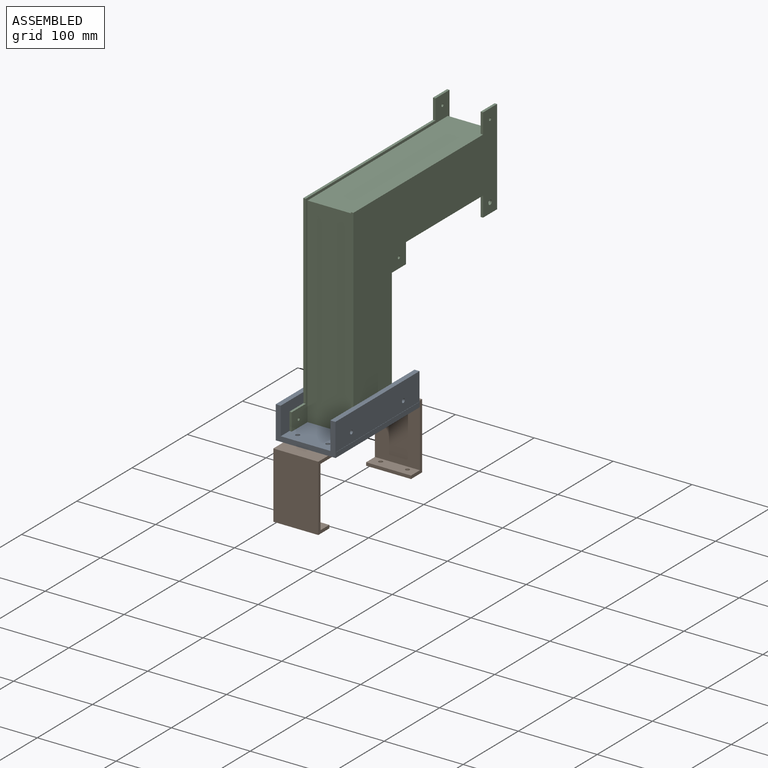
[diagram: assembled view]
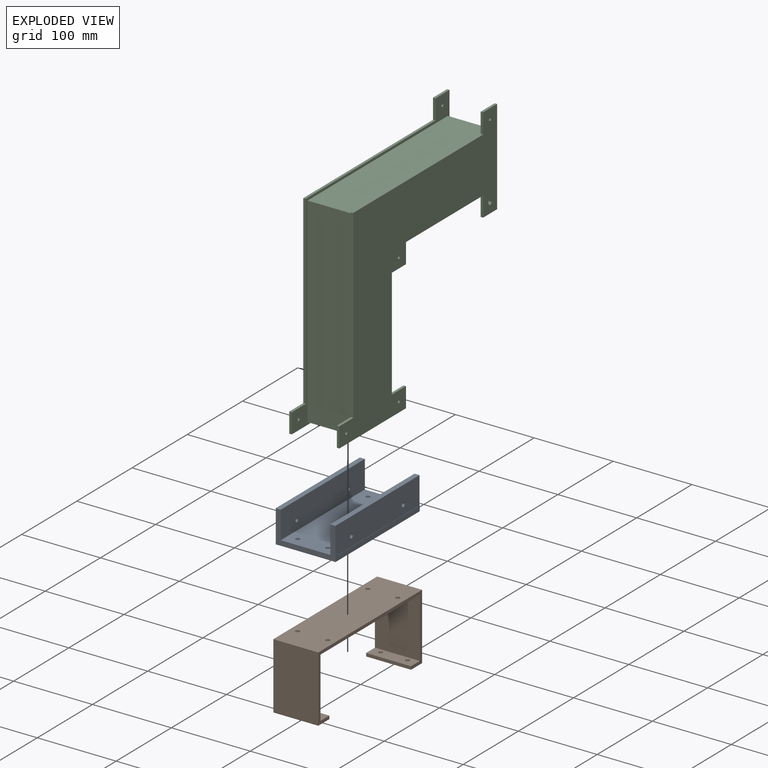
[diagram: exploded view]
GUIDED TOUR — MATED ASSEMBLY (Onshape document 570584f8e4b0b7d723cea0f6, AutoMate assembly 570584f8e4b0b7d723cea0f6_5fda52c948b7e2f611826c13_b39ca92f7335b4b7539d72b5_default)

This assembly has 3 components, labeled P0..P2 below (a component is one placed occurrence of a part; the same part can appear more than once), held together by 2 mates. A mate is a constraint between two components; its type names the relative motion it leaves free:
  FASTENED — locks the two components together rigidly (no relative motion).
Axis/direction vectors are unit vectors and 'through' points are millimeter coordinates, both in the assembly's world frame.

MATES
  1. FASTENED "Fastened 2": P2 <-> P0, direction (0.000, 0.000, -1.000) through (2.77, 72.53, -97.50) mm
  2. FASTENED "Fastened 1": P1 <-> P0, direction (0.000, 0.000, 1.000) through (2.90, 72.53, -103.85) mm

ASSEMBLY ORDER
  1. P2 — the base component [order verified]
  2. P0 [order verified]
  3. P1 [order verified]
Order-tag legend:
  [order verified] — this step's position reverses a verified removal order: the component was checked to insert without passing through the ones already placed.

Of the 3 components, 1 carries the full construction recipe — the FeatureScript program that regenerates the part's solid from scratch; the rest are supplied as boundary geometry only.
Each toured component is shown spotlighted twice — in the assembled view, then in the exploded view, where a leader line traces a displaced component back to its assembled socket (saturated green if recipe-attached, orange if geometry-only; every other component desaturated gray) — followed by its recipe or geometry summary and the mates that hold it.
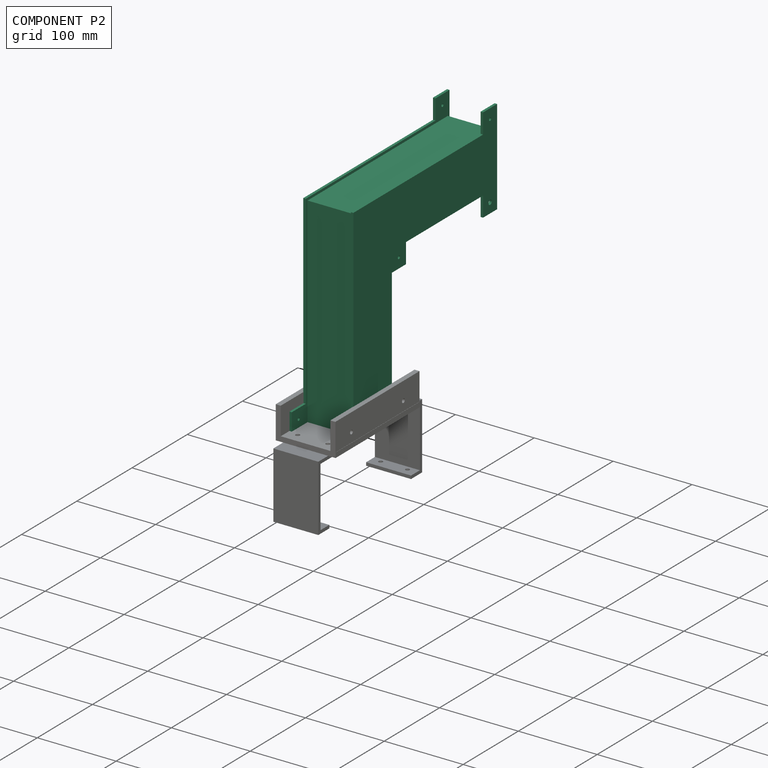
[diagram: component P2 — assembled]
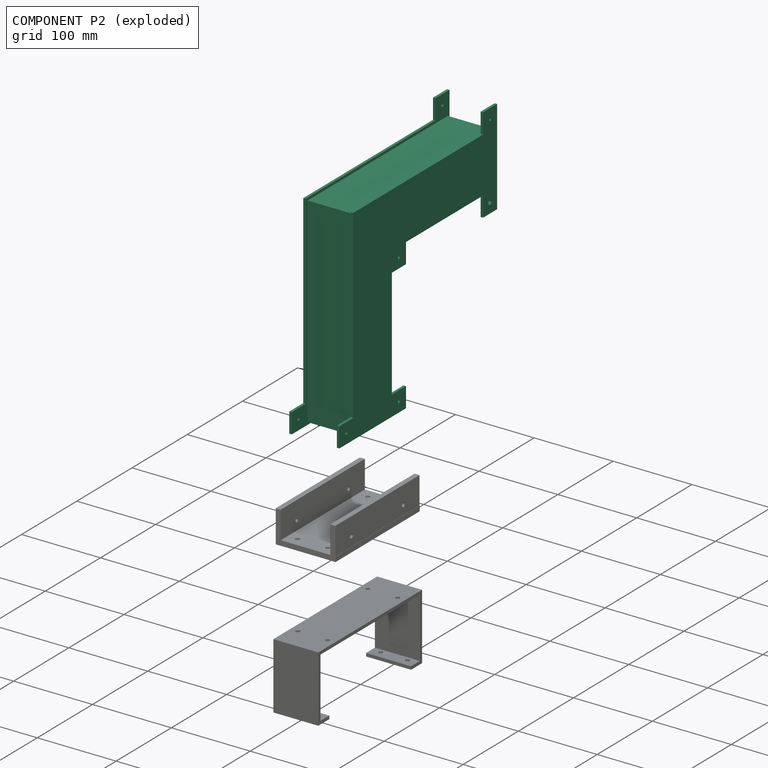
[diagram: component P2 — exploded]
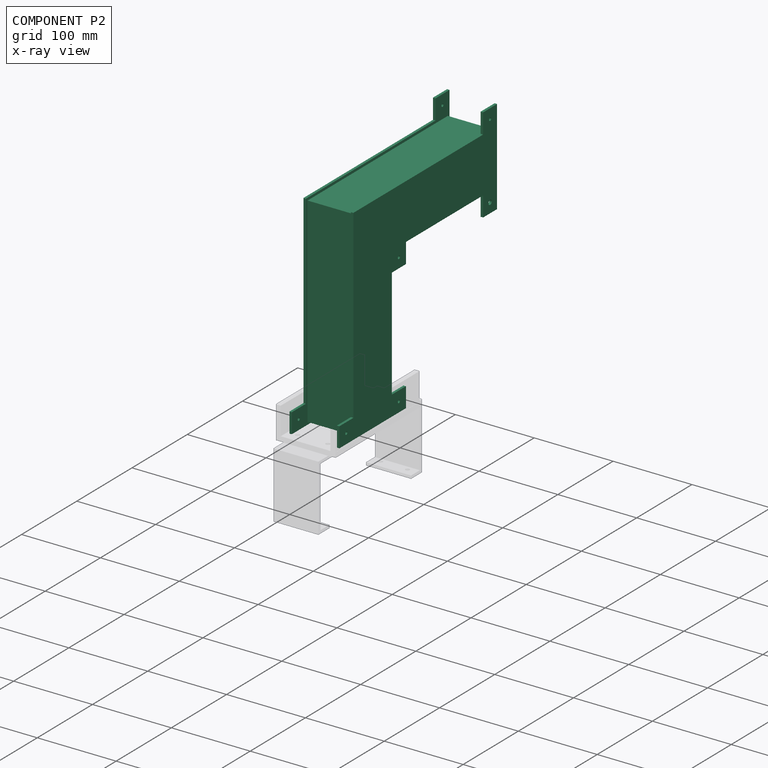
[diagram: component P2 — x-ray view]
COMPONENT P2 — recipe-attached (CADFS 00125409, mesh-verified: the recipe's output STEP matches this component's geometry to below the mesh-comparison resolution (tessellation chordal tolerance ~0.614 mm)).
Held by: FASTENED mate "Fastened 2" to P0.
Construction recipe (FeatureScript — the CAD program that rebuilds this solid; sketch coordinates are in the units given by the * unit suffixes, e.g. mm):

FeatureScript 1511;
import(path : "onshape/std/geometry.fs", version : "1511.0");
import(path : "onshape/std/common.fs", version : "1511.0");
const mm = millimeter;
const VERTEX = EntityType.VERTEX;
const EDGE = EntityType.EDGE;
const FACE = EntityType.FACE;
const BODY = EntityType.BODY;
function v(x, y){return vector(x, y);}
function OD(order){return orderDisambiguation(order);}
function OSD(set){return originalSetDisambiguation(set);}
function TD(topology){return topologyDisambiguation(topology);}
function TDD(query){return trueDependencyDisambiguation(query);}
function sQuery(a, b, c) {return sketchEntityQuery(a, b, c);}

annotation { "Feature Type Name" : "Feature", "Feature Type Description" : "" }
export const myFeature = defineFeature(function(context is Context, id is Id, definition is map)
    precondition{}
    {
        {
            var Q0;
            Q0=qCreatedBy(makeId("Top.planeOp"),FACE);
            var sketch = newSketch(context, id + "F0", { "sketchPlane" : qUnion([Q0])});
            skLineSegment(sketch, "E0", {"start": v(-190.5, -63.5) * mm, "end": v(63.5, -63.5) * mm});
            skLineSegment(sketch, "E1", {"start": v(63.5, -63.5) * mm, "end": v(63.5, 190.5) * mm});
            skLineSegment(sketch, "E2", {"start": v(63.5, 190.5) * mm, "end": v(0, 190.5) * mm});
            skLineSegment(sketch, "E3", {"start": v(0, 190.5) * mm, "end": v(0, 0) * mm});
            skLineSegment(sketch, "E4", {"start": v(0, 0) * mm, "end": v(-190.5, 0) * mm});
            skLineSegment(sketch, "E5", {"start": v(-190.5, 0) * mm, "end": v(-190.5, -63.5) * mm});
            skSolve(sketch);
        }
        {
            var Q0;
            Q0=makeQuery(id+"F0.imprint","IMPRINT",FACE,{"disambiguationData":[TD([[makeQuery(id+"F0.imprint","IMPRINT",EDGE,{"derivedFrom":sQuery(id+"F0.wireOp",EDGE,"E0")}),1.0]])]});
            extrude(context, id + "F1", {"entities" : qUnion([Q0]), "depth" : 57.15 * mm});
        }
        {
            var Q0;
            Q0=makeQuery(id+"F1.opExtrude","CAP_FACE",FACE,{"disambiguationData":[OSD([sQuery(id+"F0.wireOp",EDGE,"E0"),sQuery(id+"F0.wireOp",EDGE,"E2"),sQuery(id+"F0.wireOp",EDGE,"E3"),sQuery(id+"F0.wireOp",EDGE,"E4"),sQuery(id+"F0.wireOp",EDGE,"E5"),sQuery(id+"F0.wireOp",EDGE,"E1")])],"isStart":true});
            var sketch = newSketch(context, id + "F2", { "sketchPlane" : qUnion([Q0])});
            skLineSegment(sketch, "E6", {"start": v(-28.57, -3.17) * mm, "end": v(-168.28, -3.17) * mm});
            skLineSegment(sketch, "E7", {"start": v(-193.68, -3.17) * mm, "end": v(-193.68, 66.68) * mm});
            skLineSegment(sketch, "E8", {"start": v(-168.28, 66.68) * mm, "end": v(66.67, 66.68) * mm});
            skLineSegment(sketch, "E9", {"start": v(66.67, 66.68) * mm, "end": v(66.67, -168.28) * mm});
            skLineSegment(sketch, "E10", {"start": v(66.67, -193.68) * mm, "end": v(-3.18, -193.68) * mm});
            skLineSegment(sketch, "E11", {"start": v(-3.18, -168.28) * mm, "end": v(-3.17, -28.58) * mm});
            skLineSegment(sketch, "E12", {"start": v(-193.68, -3.17) * mm, "end": v(-193.68, -28.57) * mm});
            skLineSegment(sketch, "E13", {"start": v(-193.68, -28.57) * mm, "end": v(-168.28, -28.57) * mm});
            skLineSegment(sketch, "E14", {"start": v(-168.28, -28.57) * mm, "end": v(-168.28, -3.17) * mm});
            skLineSegment(sketch, "E15", {"start": v(-193.68, 66.68) * mm, "end": v(-193.68, 92.08) * mm});
            skLineSegment(sketch, "E16", {"start": v(-193.68, 92.08) * mm, "end": v(-168.28, 92.08) * mm});
            skLineSegment(sketch, "E17", {"start": v(-168.28, 92.08) * mm, "end": v(-168.28, 66.68) * mm});
            skLineSegment(sketch, "E18", {"start": v(-3.18, -193.68) * mm, "end": v(-28.58, -193.68) * mm});
            skLineSegment(sketch, "E19", {"start": v(-28.58, -193.68) * mm, "end": v(-28.58, -168.28) * mm});
            skLineSegment(sketch, "E20", {"start": v(-28.58, -168.28) * mm, "end": v(-3.18, -168.28) * mm});
            skLineSegment(sketch, "E21", {"start": v(66.67, -193.68) * mm, "end": v(92.08, -193.68) * mm});
            skLineSegment(sketch, "E22", {"start": v(92.08, -193.68) * mm, "end": v(92.08, -168.28) * mm});
            skLineSegment(sketch, "E23", {"start": v(92.08, -168.28) * mm, "end": v(66.67, -168.28) * mm});
            skLineSegment(sketch, "E24", {"start": v(-3.17, -28.58) * mm, "end": v(-28.57, -28.58) * mm});
            skLineSegment(sketch, "E25", {"start": v(-28.57, -28.57) * mm, "end": v(-28.57, -3.17) * mm});
            skCircle(sketch, "E26", {"center": v(-15.87, -15.88) * mm, "radius": 1.9 * mm});
            skCircle(sketch, "E27", {"center": v(-180.98, -15.87) * mm, "radius": 1.9 * mm});
            skCircle(sketch, "E28", {"center": v(-180.97, 79.38) * mm, "radius": 1.9 * mm});
            skPoint(sketch, "E28.centerSnap0", {"position": v(-180.97, 92.08) * mm});
            skCircle(sketch, "E29", {"center": v(-15.88, -180.97) * mm, "radius": 2.86 * mm});
            skPoint(sketch, "E29.centerSnap0", {"position": v(-28.58, -180.97) * mm});
            skCircle(sketch, "E30", {"center": v(79.38, -180.97) * mm, "radius": 1.9 * mm});
            skSolve(sketch);
        }
        {
            var Q0;
            Q0=makeQuery(id+"F2.imprint","IMPRINT",FACE,{"disambiguationData":[TD([[makeQuery(id+"F2.imprint","IMPRINT",EDGE,{"derivedFrom":sQuery(id+"F2.wireOp",EDGE,"E6")}),-1.0]])]});
            var Q1;
            Q1=makeQuery(id+"F2.imprint","IMPRINT",FACE,{"disambiguationData":[TD([[makeQuery(id+"F2.imprint","IMPRINT",EDGE,{"derivedFrom":makeQuery(id+"F1.opExtrude","CAP_EDGE",EDGE,{"disambiguationData":[OSD([sQuery(id+"F0.wireOp",EDGE,"E0")])],"isStart":true})}),-1.0]])]});
            extrude(context, id + "F3", {"entities" : qUnion([Q0, Q1]), "operationType" : NewBodyOperationType.ADD, "depth" : 3.17 * mm});
        }
        {
            var Q0;
            Q0=makeQuery(id+"F1.opExtrude","CAP_FACE",FACE,{"disambiguationData":[OSD([sQuery(id+"F0.wireOp",EDGE,"E0"),sQuery(id+"F0.wireOp",EDGE,"E2"),sQuery(id+"F0.wireOp",EDGE,"E3"),sQuery(id+"F0.wireOp",EDGE,"E4"),sQuery(id+"F0.wireOp",EDGE,"E5"),sQuery(id+"F0.wireOp",EDGE,"E1")])],"isStart":false});
            var sketch = newSketch(context, id + "F4", { "sketchPlane" : qUnion([Q0])});
            skLineSegment(sketch, "E31", {"start": v(-3.18, 168.27) * mm, "end": v(-3.17, 28.58) * mm});
            skLineSegment(sketch, "E32", {"start": v(-28.57, 3.17) * mm, "end": v(-168.28, 3.17) * mm});
            skLineSegment(sketch, "E33", {"start": v(-193.68, 3.17) * mm, "end": v(-193.68, -66.68) * mm});
            skLineSegment(sketch, "E34", {"start": v(-168.27, -66.68) * mm, "end": v(66.67, -66.68) * mm});
            skLineSegment(sketch, "E35", {"start": v(66.68, -66.68) * mm, "end": v(66.67, 168.28) * mm});
            skLineSegment(sketch, "E36", {"start": v(66.67, 193.68) * mm, "end": v(-3.18, 193.68) * mm});
            skLineSegment(sketch, "E37", {"start": v(-193.68, 3.17) * mm, "end": v(-193.68, 28.57) * mm});
            skLineSegment(sketch, "E38", {"start": v(-193.68, 28.57) * mm, "end": v(-168.28, 28.57) * mm});
            skLineSegment(sketch, "E39", {"start": v(-168.28, 28.57) * mm, "end": v(-168.28, 3.17) * mm});
            skLineSegment(sketch, "E40", {"start": v(-193.67, -66.68) * mm, "end": v(-193.67, -92.08) * mm});
            skLineSegment(sketch, "E41", {"start": v(-193.67, -92.08) * mm, "end": v(-168.27, -92.08) * mm});
            skLineSegment(sketch, "E42", {"start": v(-168.27, -92.08) * mm, "end": v(-168.27, -66.68) * mm});
            skLineSegment(sketch, "E43", {"start": v(-3.18, 193.67) * mm, "end": v(-28.58, 193.67) * mm});
            skLineSegment(sketch, "E44", {"start": v(-28.58, 193.67) * mm, "end": v(-28.58, 168.27) * mm});
            skLineSegment(sketch, "E45", {"start": v(-28.58, 168.27) * mm, "end": v(-3.18, 168.27) * mm});
            skLineSegment(sketch, "E46", {"start": v(66.67, 193.68) * mm, "end": v(92.08, 193.68) * mm});
            skLineSegment(sketch, "E47", {"start": v(92.08, 193.68) * mm, "end": v(92.08, 168.28) * mm});
            skLineSegment(sketch, "E48", {"start": v(92.08, 168.28) * mm, "end": v(66.67, 168.28) * mm});
            skLineSegment(sketch, "E49", {"start": v(-28.57, 3.17) * mm, "end": v(-28.57, 28.58) * mm});
            skLineSegment(sketch, "E50", {"start": v(-28.57, 28.58) * mm, "end": v(-3.17, 28.58) * mm});
            skPoint(sketch, "E51.orphan", {"position": v(0, 28.58) * mm});
            skCircle(sketch, "E52", {"center": v(-15.88, 180.97) * mm, "radius": 1.9 * mm});
            skCircle(sketch, "E53", {"center": v(79.38, 180.98) * mm, "radius": 1.9 * mm});
            skCircle(sketch, "E54", {"center": v(-15.87, 15.88) * mm, "radius": 1.9 * mm});
            skCircle(sketch, "E55", {"center": v(-180.97, 15.87) * mm, "radius": 1.9 * mm});
            skCircle(sketch, "E56", {"center": v(-180.97, -79.38) * mm, "radius": 1.9 * mm});
            skSolve(sketch);
        }
        {
            var Q0;
            Q0=qSketchRegion(id+"F4",true);
            extrude(context, id + "F5", {"entities" : qUnion([Q0]), "operationType" : NewBodyOperationType.ADD, "depth" : 3.17 * mm});
        }
    });
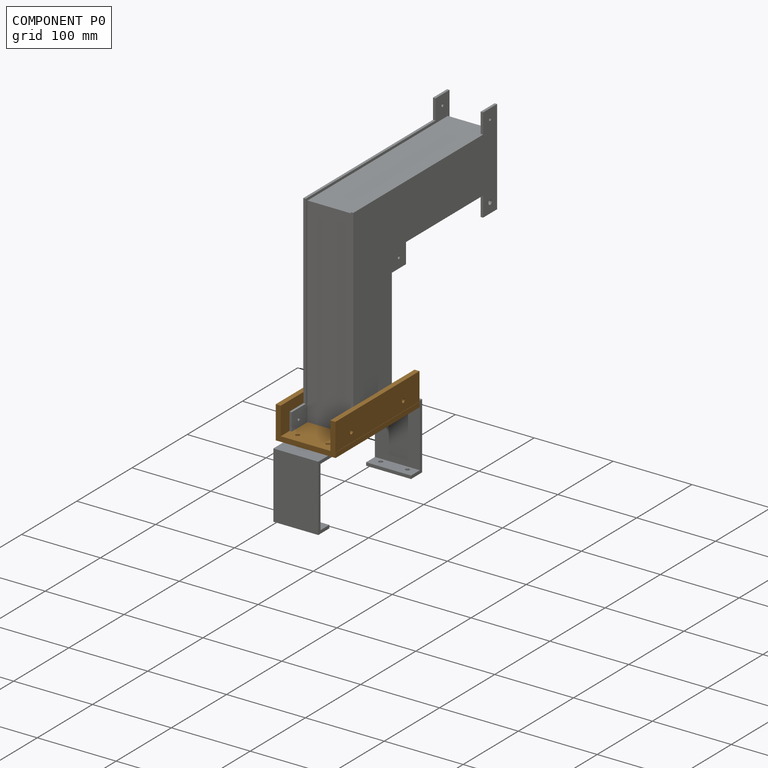
[diagram: component P0 — assembled]
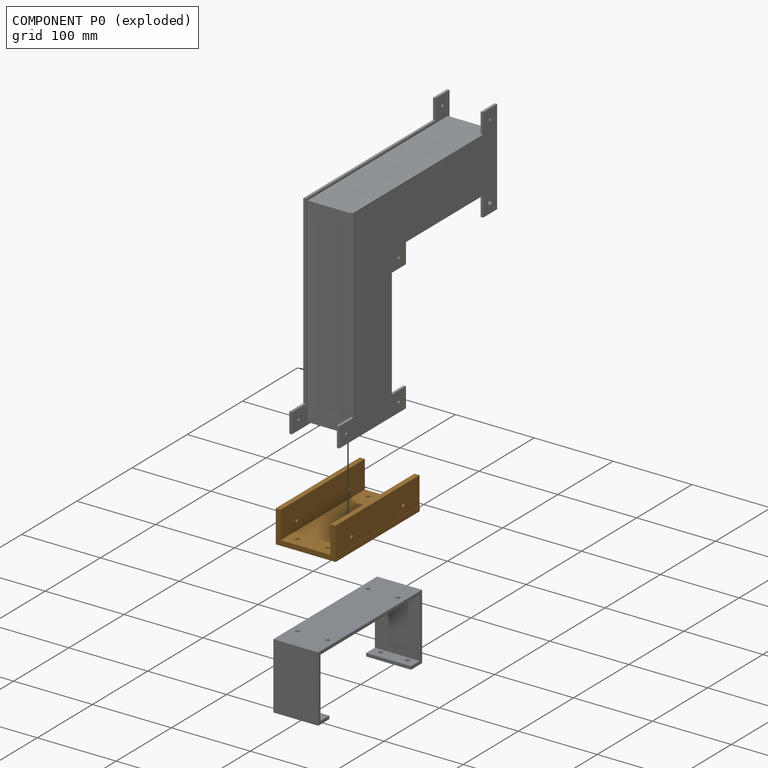
[diagram: component P0 — exploded]
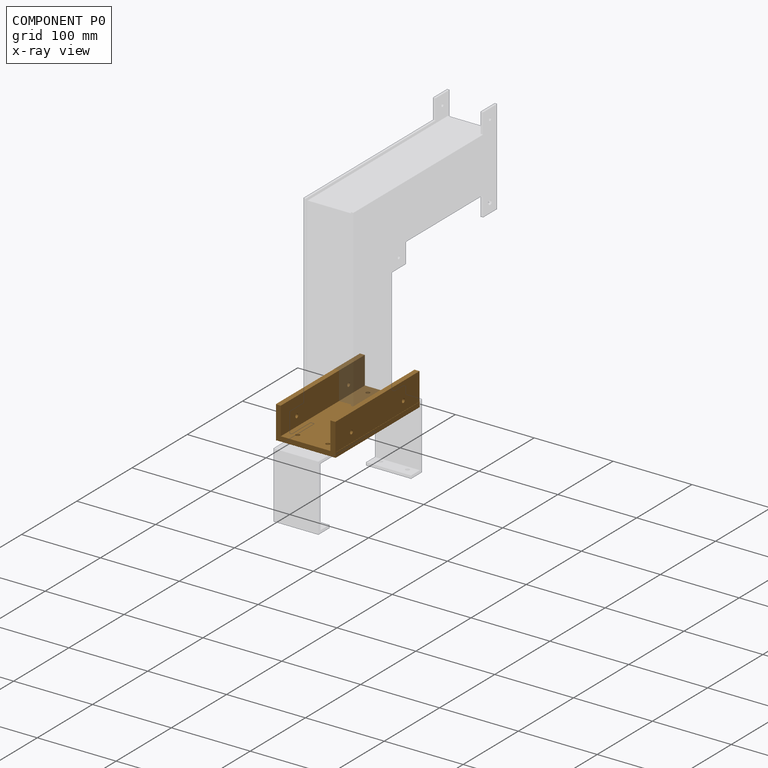
[diagram: component P0 — x-ray view]
COMPONENT P0 — geometry summary (no construction recipe available for this part):
  bounding box: 152.4 x 75.9 x 41.4 mm
  B-rep topology: 1 solid, 20 faces, 116 edges
  volume: 140208 mm^3 (29% of its bounding box)
  symmetry: 2-fold rotationally symmetric about the z axis; mirror-symmetric across its x mid-plane, y mid-plane
Held by: FASTENED mate "Fastened 2" to P2; FASTENED mate "Fastened 1" to P1.
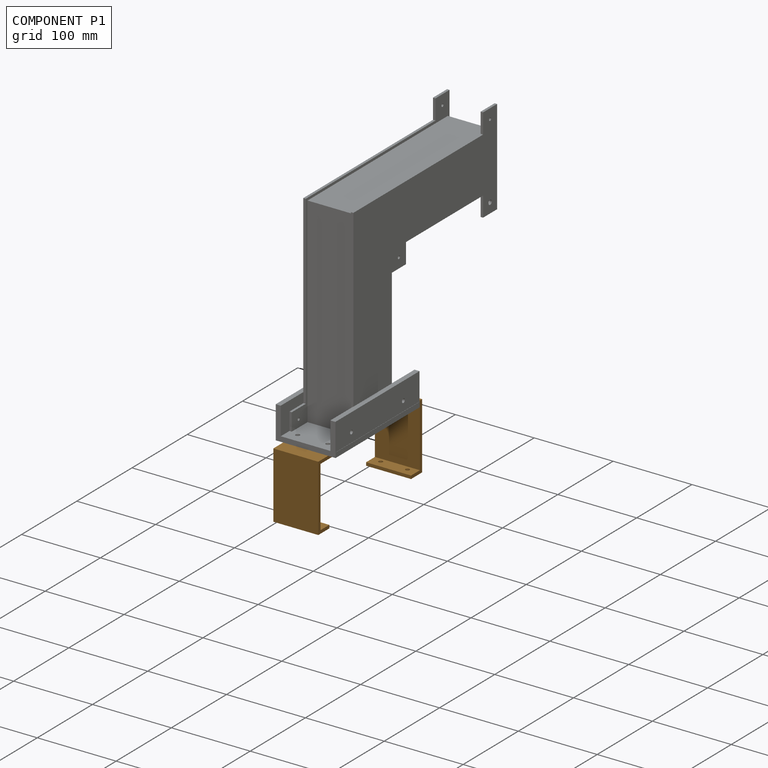
[diagram: component P1 — assembled]
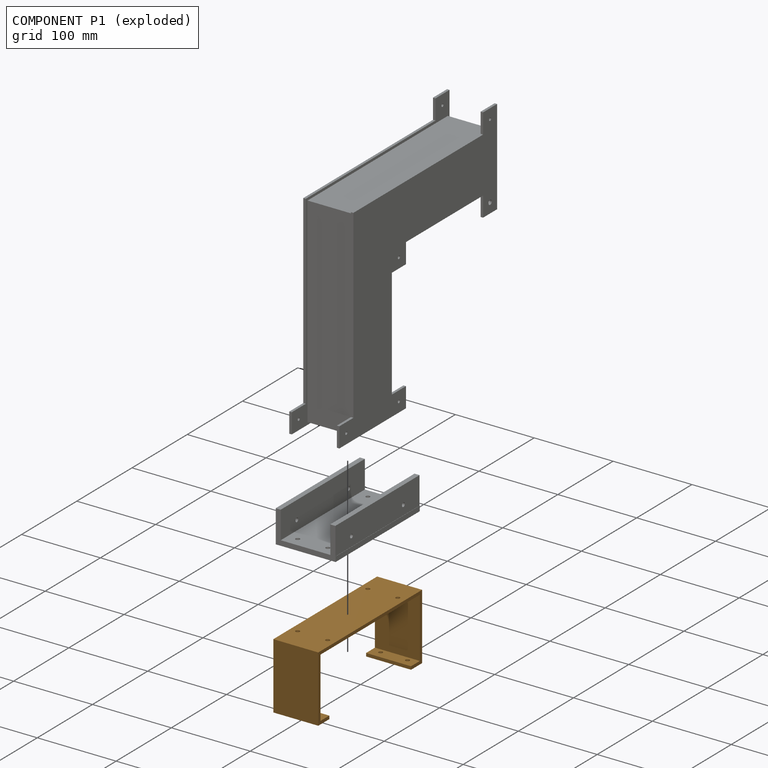
[diagram: component P1 — exploded]
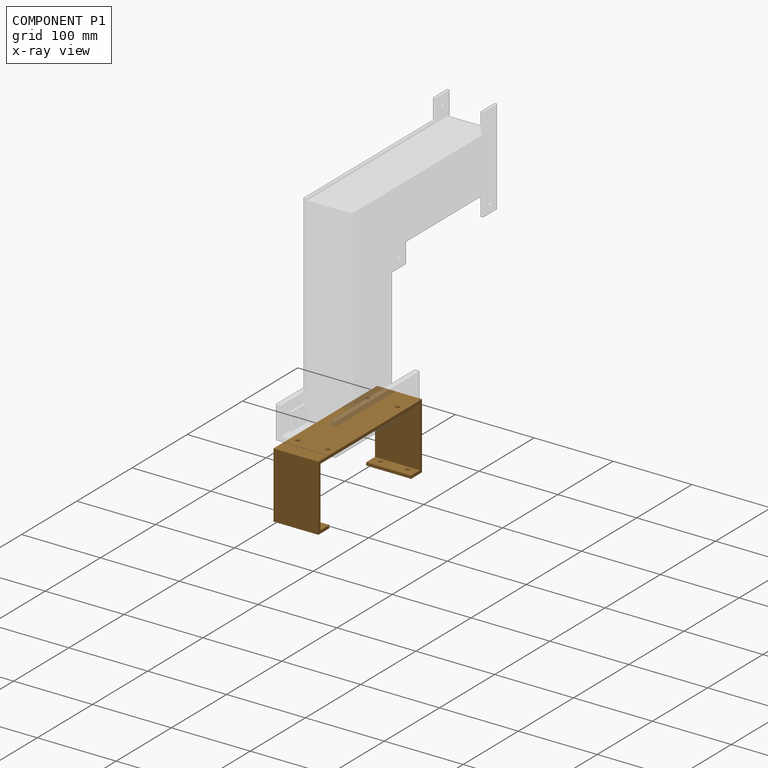
[diagram: component P1 — x-ray view]
COMPONENT P1 — geometry summary (no construction recipe available for this part):
  bounding box: 188.0 x 84.0 x 57.0 mm
  B-rep topology: 1 solid, 22 faces, 136 edges
  volume: 85991 mm^3 (10% of its bounding box)
  symmetry: 2-fold rotationally symmetric about the y axis; mirror-symmetric across its x mid-plane, z mid-plane
Held by: FASTENED mate "Fastened 1" to P0.
PROVENANCE & LICENSES
Assembly (occurrences, transforms, mates, per-part STEP geometry): AutoMate dataset, Zenodo record 7776208, CC0.
Construction recipes: CADFS (HuggingFace VladPyatov/CADFS, CC-BY-4.0, layered over the ABC dataset), FeatureScript reconstruction programs keyed by ABC model id.
Join: ABC meta listings map ABC model id -> Onshape documentId; within a shared document, parts are matched by geometric signature (bounding-box dims + volume at 0.1% relative tolerance, exact B-rep face/solid counts).
Verification: 1 of this assembly's 3 components carries a recipe attachment, and every attachment is mesh-verified: the CADFS STEP and the AutoMate member STEP were compared as meshes in their shared local frame (symmetric sampled-point-to-mesh distance); worst across the 1 attachment: below the mesh-comparison resolution (tessellation chordal tolerance ~0.614 mm) on a 409 mm part.
Renders: orthographic iso camera (az 35 / el 25); the floor grid conveys scale (grid pitch printed in each image; no ruler). In the exploded view each component is displaced by its stored offset vector: the offsets alone carry the explosion direction (mate normal/axis signs are not orientation cues and do not encode it), and separation distances are assigned per mate-chain, not proportionally to assembly-order depth.
